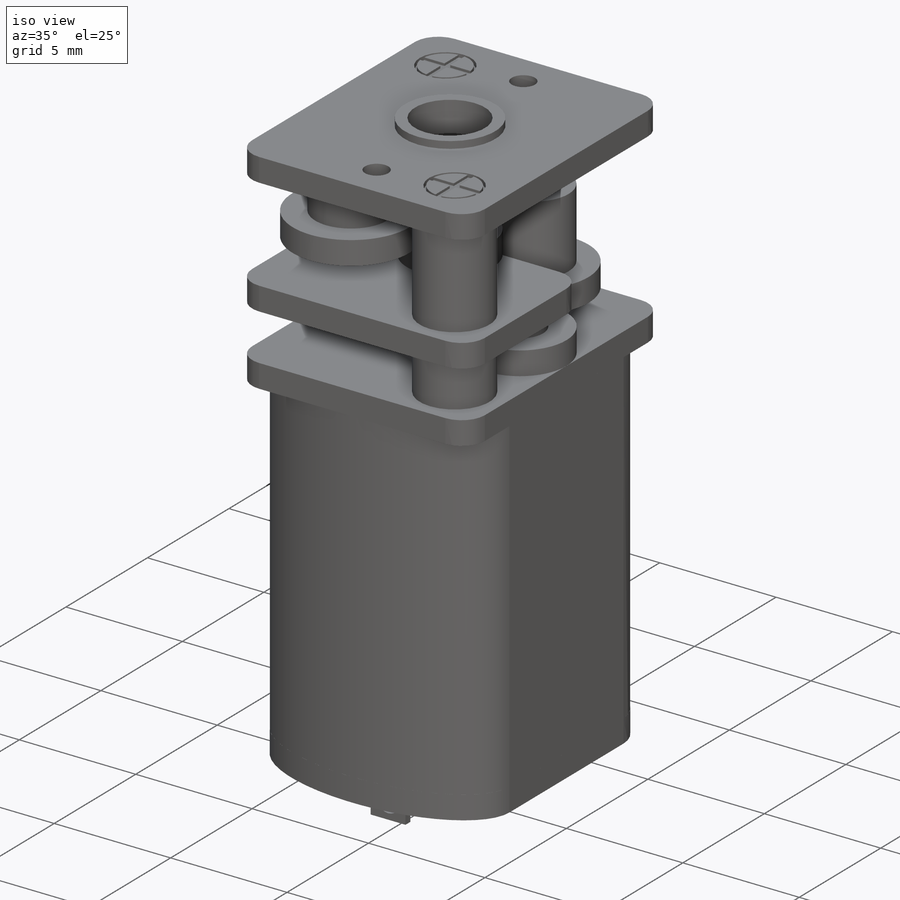
[diagram: iso view]
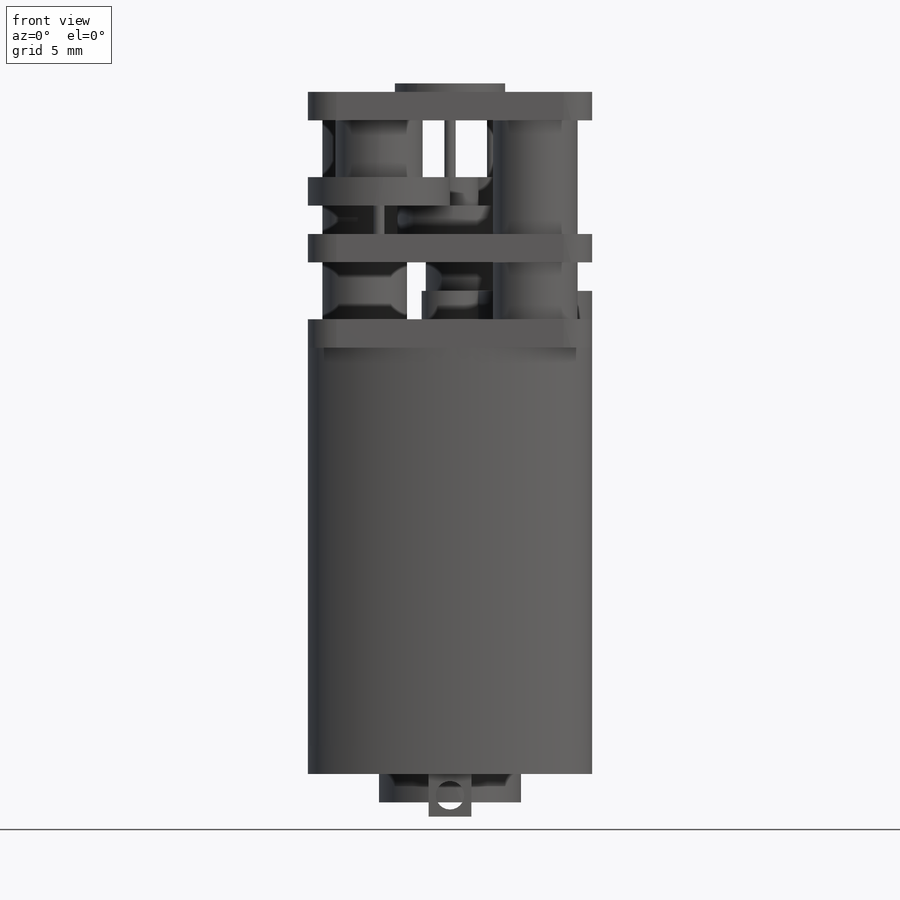
[diagram: front view]
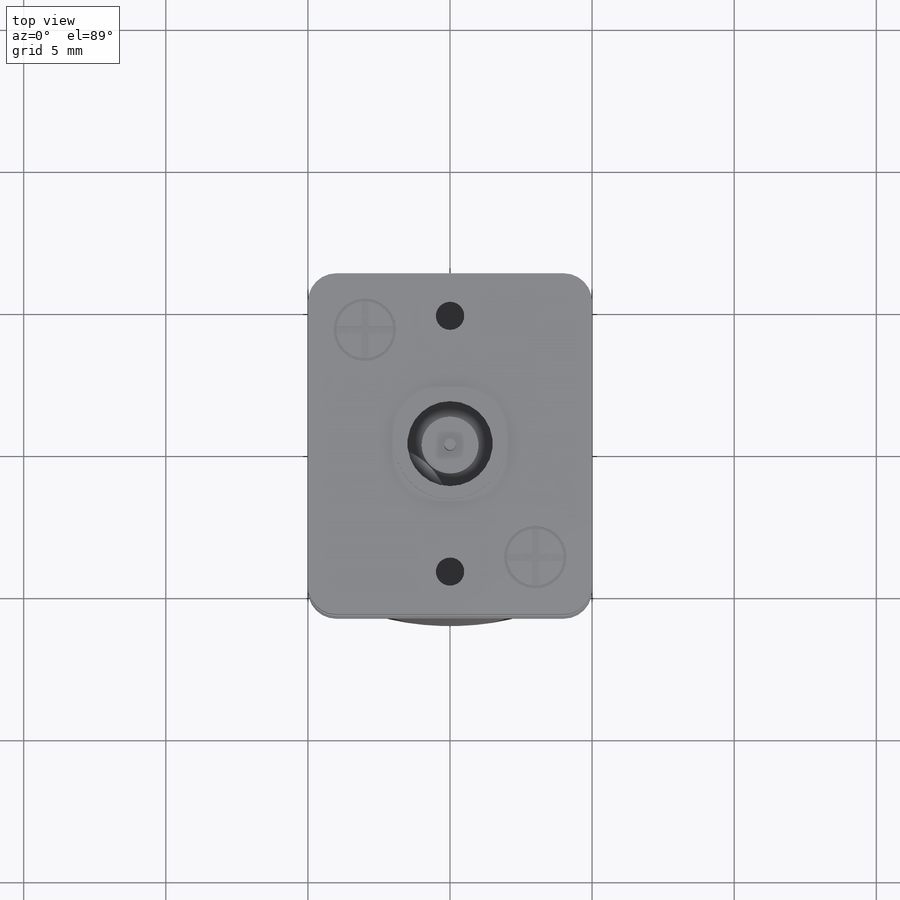
[diagram: top view]
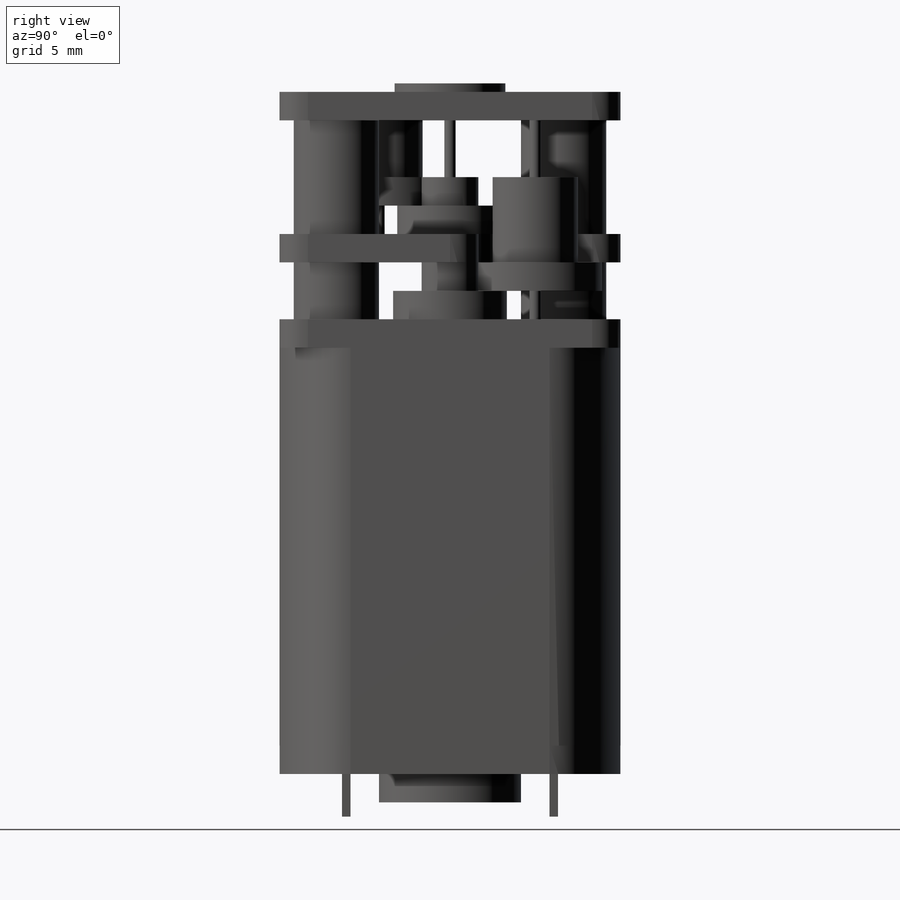
[diagram: right view]
SOLIDWORKS PART (.sldprt)
format: sldprt  version: not decoded by parser v0  size: 783,872 bytes
history: native  units: mm
features: sketch x33, extrude x24, fillet x14, cut_extrude x9, plane x3, material x1 (+10 scaffold rows collapsed)
feature tree (94):
  scaffold x10  (default folders/planes/origin — collapsed)
  material  "Material <sin especificar>"
  plane  "Alzado"
  plane  "Planta"
  plane  "Vista lateral"
  sketch  "Croquis1"  dims[D1=12.0mm D2=10.0mm D3=3.5mm]
  extrude  "Saliente-Extruir1"  Depth=1mm
  sketch  "Croquis2"  dims[D1=~1.939021mm]
  extrude  "Saliente-Extruir2"  Depth=1mm
  sketch  "Croquis3"  dims[D1=~0.692508mm]
  cut_extrude  "Cortar-Extruir1"  Depth=0.5mm
  sketch  "Croquis4"  dims[D1=0.3mm]
  extrude  "Saliente-Extruir3"  Depth=1.5mm
  sketch  "Croquis5"  dims[D1=~0.500139mm]
  cut_extrude  "Cortar-Extruir2"  Depth=0.3mm
  sketch  "Croquis6"  dims[D1=0.3155mm]
  cut_extrude  "Cortar-Extruir3"  Depth=0.3mm
  sketch  "Croquis7"  dims[D1=0.0mm]
  extrude  "Saliente-Extruir4"  Depth=14mm
  sketch  "Croquis8"  dims[D1=10.0mm]
  extrude  "Saliente-Extruir5"  Depth=1mm
  sketch  "Croquis23"  dims[D1=5.0mm]
  extrude  "Saliente-Extruir13"  Depth=1mm
  sketch  "Croquis25"
  extrude  "Saliente-Extruir18"  Depth=1mm
  sketch  "Croquis26"  dims[D1=~1.00369mm]
  extrude  "Saliente-Extruir19"  Depth=1mm
  sketch  "Croquis27"  dims[D1=1.0mm]
  extrude  "Saliente-Extruir21"  Depth=1mm
  sketch  "Croquis29"  dims[D1=~1.561934mm]
  extrude  "Saliente-Extruir22"  Depth=3mm
  fillet  "Redondeo1"  Radius=1mm
  fillet  "Redondeo2"  Radius=1mm
  fillet  "Redondeo3"  Radius=1mm
  fillet  "Redondeo4"  Radius=1mm
  sketch  "Croquis9"  dims[D1=4.0mm]
  extrude  "Saliente-Extruir6"  Depth=2mm
  sketch  "Croquis10"  dims[D1=12.0mm]
  extrude  "Saliente-Extruir7"  Depth=1mm
  sketch  "Croquis11"  dims[D1=2.0mm]
  extrude  "Saliente-Extruir8"  Depth=4mm
  sketch  "Croquis12"  dims[D1=5.0mm]
  cut_extrude  "Cortar-Extruir4"  Depth=1mm
  sketch  "Croquis30"
  extrude  "Saliente-Extruir24"  Depth=1mm
  sketch  "Croquis31"  dims[D1=~0.923369mm]
  extrude  "Saliente-Extruir26"  Depth=1mm
  sketch  "Croquis32"  dims[D1=2.5mm]
  extrude  "Saliente-Extruir27"  Depth=1mm
  sketch  "Croquis33"  dims[D1=~2.303564mm]
  extrude  "Saliente-Extruir28"  Depth=2mm
  sketch  "Croquis34"  dims[D1=~0.268981mm]
  extrude  "Saliente-Extruir29"  Depth=2mm
  sketch  "Croquis35"  dims[D1=~0.478307mm]
  extrude  "Saliente-Extruir30"  Depth=4mm
  sketch  "Croquis36"  dims[D1=~0.481673mm]
  extrude  "Saliente-Extruir31"  Depth=2mm
  fillet  "Redondeo5"  Radius=1mm
  fillet  "Redondeo6"  Radius=1mm
  fillet  "Redondeo7"  Radius=1mm
  fillet  "Redondeo8"  Radius=1mm
  fillet  "Redondeo9"  Radius=1mm
  sketch  "Croquis13"  dims[D1=10.0mm]
  extrude  "Saliente-Extruir9"  Depth=1mm
  sketch  "Croquis14"  dims[D1=~1.187156mm]
  extrude  "Saliente-Extruir10"  Depth=0.3mm
  sketch  "Croquis15"  dims[D1=4.5mm]
  cut_extrude  "Cortar-Extruir5"  Depth=1mm
  sketch  "Croquis16"  dims[D1=2.0mm]
  cut_extrude  "Cortar-Extruir6"  Depth=0.2mm
  sketch  "Croquis17"  dims[D1=~0.934269mm]
  extrude  "Saliente-Extruir11"  Depth=0.2mm
  sketch  "Croquis18"  dims[D1=~0.660206mm]
  extrude  "Saliente-Extruir12"  Depth=0.2mm
  sketch  "Croquis19"  dims[D1=0.25mm D2=0.25mm]
  cut_extrude  "Cortar-Extruir7"  Depth=0.1mm
  sketch  "Croquis21"  dims[c1.D1=0.25mm c1.D2=~0.175973mm c2.D2=90.0deg c3.D2=0.25mm]
  cut_extrude  "Cortar-Extruir8"  Depth=0.1mm
  fillet  "Redondeo10"  Radius=1mm
  fillet  "Redondeo11"  Radius=1mm
  fillet  "Redondeo12"  Radius=1mm
  fillet  "Redondeo13"  Radius=1mm
  fillet  "Redondeo14"  Radius=1mm
  sketch  "Croquis22"  dims[D1=0.0mm]
  cut_extrude  "Cortar-Extruir9"  Depth=1mm
decode coverage: 78 of 80 modeling features carry decoded parameters
note: ~ marks probable driven/reference dimensions
note: suppression state not decoded; provenance and decode notes live in map.json
